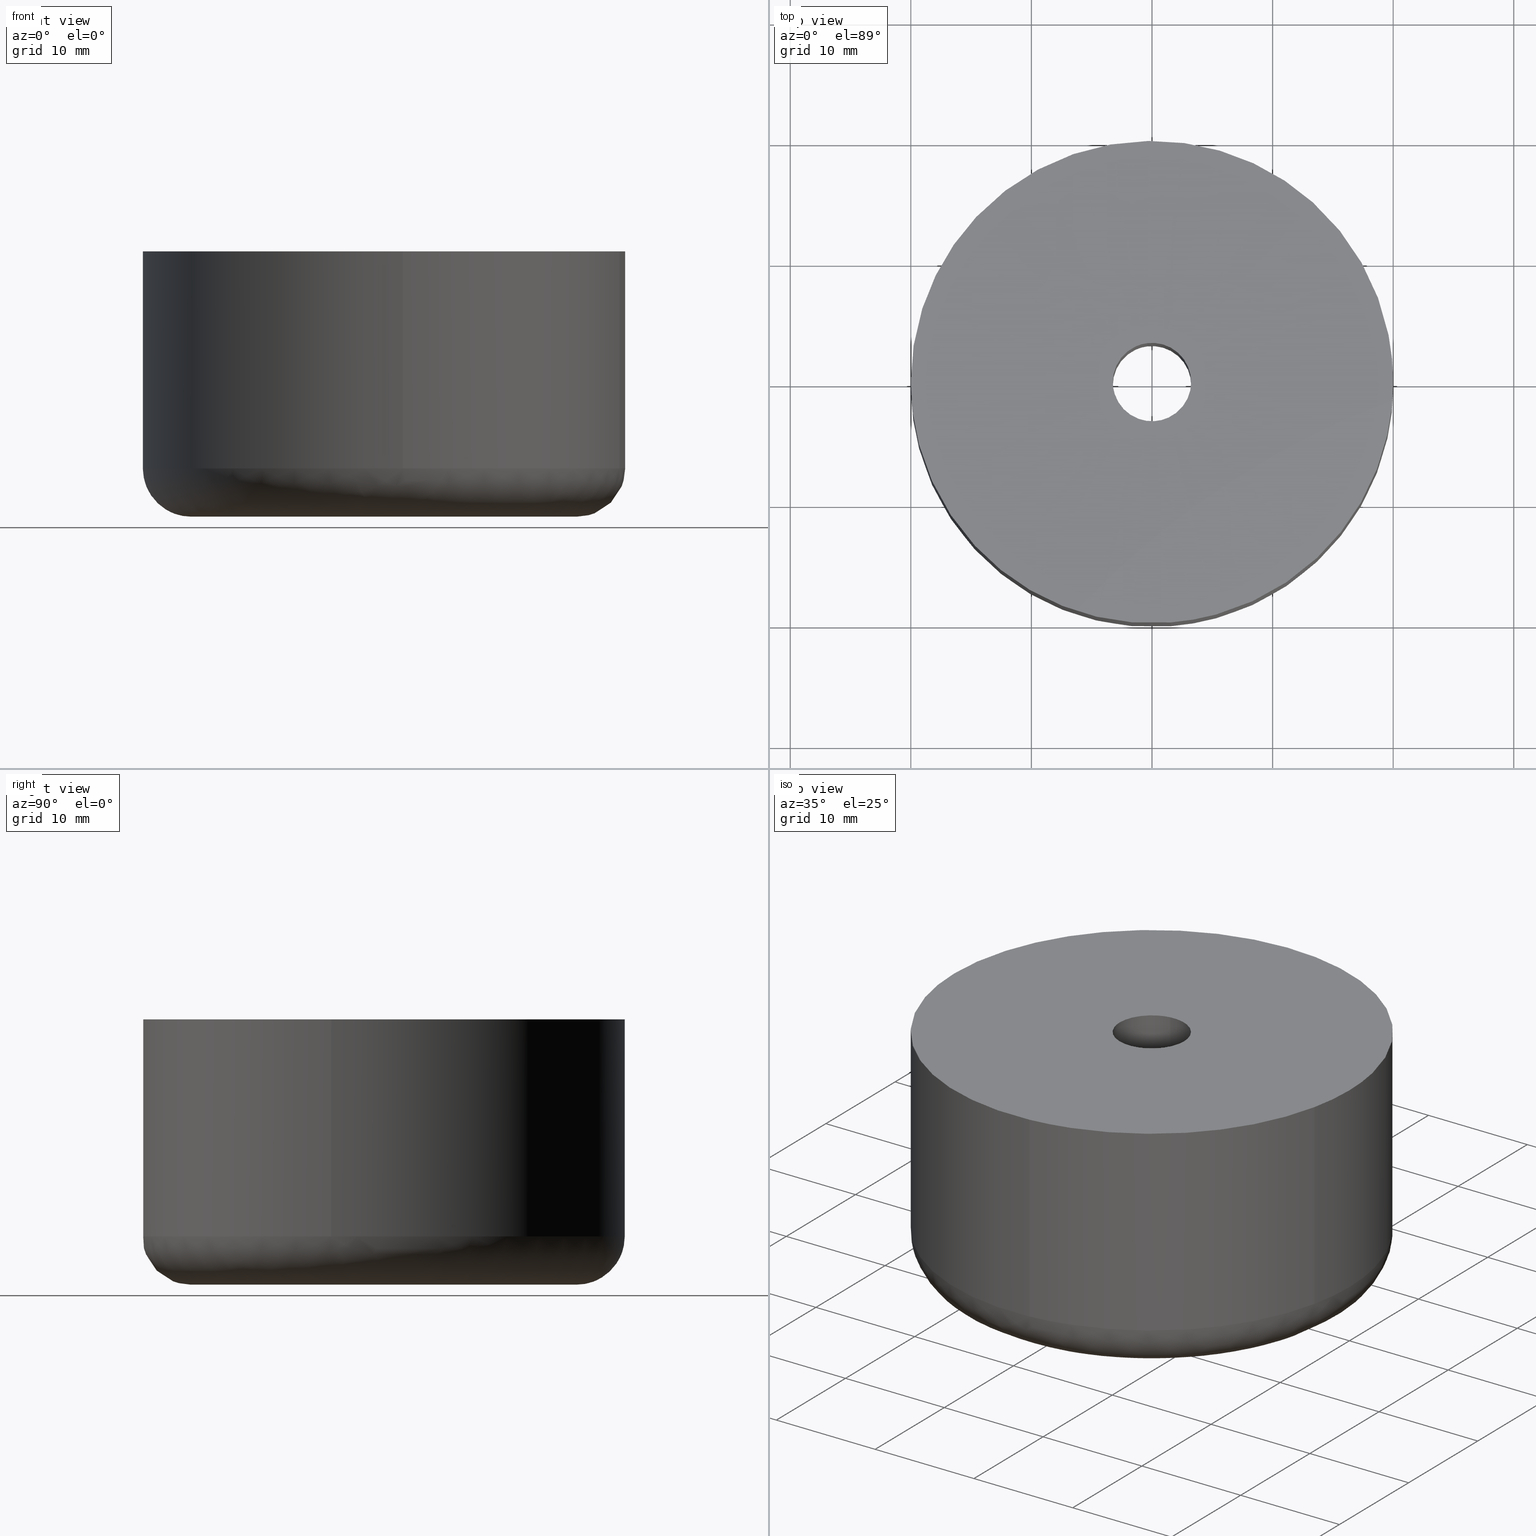
[diagram: canonical four-view strip — front | top / right | iso, engineering-drawing reading convention]
A machine part, canonical four-view strip (front | top / right | iso — engineering-drawing reading convention). The complete STEP part file that produces these views, byte-faithful:
ISO-10303-21;
HEADER;
/****************************************************************
 * Generated by software with PDE/Lib inside                    *
 * PDElib Version 4.4.1-0003, patched  Thursday August 19 11:58 *
 * International Technegroup Inc. (www.iti-oh.com)              *
 ****************************************************************/
FILE_DESCRIPTION((''),'2;1');
FILE_NAME('','2005-12-14T14:07:30',(''),(''),'','CADfix','');
FILE_SCHEMA(('AUTOMOTIVE_DESIGN'));
ENDSEC;
DATA;
#5=APPLICATION_CONTEXT('automotive design');
#6=APPLICATION_PROTOCOL_DEFINITION('Draft International Standard','automotive_design',1998,#5);
#7=PRODUCT_CONTEXT('None',#5,'mechanical');
#8=PRODUCT('rubber foot','','None',(#7));
#9=PRODUCT_RELATED_PRODUCT_CATEGORY('part','description',(#8));
#10=PRODUCT_DEFINITION_FORMATION('None','None',#8);
#11=PRODUCT_DEFINITION_CONTEXT('part definition',#5,'design');
#12=PRODUCT_DEFINITION('None','None',#10,#11);
#18=(NAMED_UNIT(*)PLANE_ANGLE_UNIT()SI_UNIT($,.RADIAN.));
#19=DIMENSIONAL_EXPONENTS(0.0,0.0,0.0,0.0,0.0,0.0,0.0);
#20=PLANE_ANGLE_MEASURE_WITH_UNIT(PLANE_ANGLE_MEASURE(0.017453292500000),#18);
#24=(CONVERSION_BASED_UNIT('DEGREE',#20)NAMED_UNIT(#19)PLANE_ANGLE_UNIT());
#28=(NAMED_UNIT(*)SI_UNIT($,.STERADIAN.)SOLID_ANGLE_UNIT());
#32=(LENGTH_UNIT()NAMED_UNIT(*)SI_UNIT(.MILLI.,.METRE.));
#34=UNCERTAINTY_MEASURE_WITH_UNIT(LENGTH_MEASURE(0.001000000000000),#32,'DISTANCE_ACCURACY_VALUE','');
#36=(GEOMETRIC_REPRESENTATION_CONTEXT(3)GLOBAL_UNCERTAINTY_ASSIGNED_CONTEXT((#34))GLOBAL_UNIT_ASSIGNED_CONTEXT((#24,#28,#32))REPRESENTATION_CONTEXT('None','None'));
#37=AXIS2_PLACEMENT_3D('',#38,#39,#40);
#38=CARTESIAN_POINT('',(0.0,0.0,0.0));
#39=DIRECTION('',(0.0,0.0,1.0));
#40=DIRECTION('',(1.0,0.0,0.0));
#41=ADVANCED_BREP_SHAPE_REPRESENTATION('',(#37,#845),#36);
#42=PRODUCT_DEFINITION_SHAPE('','',#12);
#43=SHAPE_DEFINITION_REPRESENTATION(#42,#41);
#44=CARTESIAN_POINT('',(19.546541232075629,-4.236539307712274,22.450000000001875));
#45=CARTESIAN_POINT('',(19.532969720462436,-4.297322978909762,22.450000000001886));
#46=CARTESIAN_POINT('',(16.299555177427159,-18.779041156710942,22.450000000001882));
#47=CARTESIAN_POINT('',(1.512847942178782,-19.942780254440912,22.450000000001868));
#48=CARTESIAN_POINT('',(1.456645673493703,-19.947203468913852,22.450000000001889));
#49=CARTESIAN_POINT('',(19.546541232075629,-4.236539307712274,3.538749999923005));
#50=CARTESIAN_POINT('',(19.532969720462436,-4.297322978909762,3.538749999923005));
#51=CARTESIAN_POINT('',(16.299555177427159,-18.779041156710942,3.538749999923005));
#52=CARTESIAN_POINT('',(1.512847942178782,-19.942780254440912,3.538749999923004));
#53=CARTESIAN_POINT('',(1.456645673493703,-19.947203468913852,3.538749999923006));
#61=(BOUNDED_SURFACE()B_SPLINE_SURFACE(2,1,((#44,#49),(#45,#50),(#46,#51),(#47,#52),(#48,#53)),.UNSPECIFIED.,.F.,.F.,.U.)B_SPLINE_SURFACE_WITH_KNOTS((3,1,1,3),(2,2),(0.0,0.131658696680241,26.460633174413161,26.592291628132401),(0.0,18.911250000078880),.UNSPECIFIED.)GEOMETRIC_REPRESENTATION_ITEM()RATIONAL_B_SPLINE_SURFACE(((0.907680205065056,0.907680205065056),(0.906977187522375,0.906977187522375),(0.765685424949238,0.765685424949238),(1.001171693742237,1.001171693742237),(1.002343387484473,1.002343387484473)))REPRESENTATION_ITEM('')SURFACE());
#62=CARTESIAN_POINT('',(19.519379982625448,-4.358188281122331,4.000000000000071));
#63=VERTEX_POINT('',#62);
#64=CARTESIAN_POINT('',(1.569170392331412,-19.938347581474670,4.000000000000124));
#65=VERTEX_POINT('',#64);
#66=CARTESIAN_POINT('',(19.519379982625452,-4.358188281122331,4.000000000000071));
#67=CARTESIAN_POINT('',(16.299563234985335,-18.779049087876711,4.000000000000100));
#68=CARTESIAN_POINT('',(1.569170392331412,-19.938347581474670,4.000000000000124));
#76=(BOUNDED_CURVE()B_SPLINE_CURVE(2,(#66,#67,#68),.UNSPECIFIED.,.F.,.U.)B_SPLINE_CURVE_WITH_KNOTS((3,3),(0.537286560993393,0.736331399697739),.UNSPECIFIED.)CURVE()GEOMETRIC_REPRESENTATION_ITEM()RATIONAL_B_SPLINE_CURVE((0.925662739272852,0.762027681298202,0.969723562912946))REPRESENTATION_ITEM(''));
#77=EDGE_CURVE('',#63,#65,#76,.T.);
#78=ORIENTED_EDGE('',*,*,#77,.F.);
#79=CARTESIAN_POINT('',(19.519379947706881,-4.358188437515530,22.0));
#80=VERTEX_POINT('',#79);
#81=CARTESIAN_POINT('',(19.519379947706881,-4.358188437515530,22.0));
#82=CARTESIAN_POINT('',(19.519379982625448,-4.358188281122331,4.000000000000071));
#83=QUASI_UNIFORM_CURVE('',1,(#81,#82),.UNSPECIFIED.,.F.,.U.);
#84=EDGE_CURVE('',#80,#63,#83,.T.);
#85=ORIENTED_EDGE('',*,*,#84,.F.);
#86=CARTESIAN_POINT('',(1.569170534429815,-19.938347570291452,22.0));
#87=VERTEX_POINT('',#86);
#88=CARTESIAN_POINT('',(19.519379947706874,-4.358188437515530,22.0));
#89=CARTESIAN_POINT('',(16.299563135519694,-18.779048990072631,22.000000000000007));
#90=CARTESIAN_POINT('',(1.569170534429815,-19.938347570291448,22.000000000000004));
#98=(BOUNDED_CURVE()B_SPLINE_CURVE(2,(#88,#89,#90),.UNSPECIFIED.,.F.,.U.)B_SPLINE_CURVE_WITH_KNOTS((3,3),(0.537286562304474,0.736331398476015),.UNSPECIFIED.)CURVE()GEOMETRIC_REPRESENTATION_ITEM()RATIONAL_B_SPLINE_CURVE((0.925662737117169,0.762027683670648,0.969723560363300))REPRESENTATION_ITEM(''));
#99=EDGE_CURVE('',#80,#87,#98,.T.);
#100=ORIENTED_EDGE('',*,*,#99,.T.);
#101=CARTESIAN_POINT('',(1.569170534429815,-19.938347570291452,22.0));
#102=CARTESIAN_POINT('',(1.569170392331412,-19.938347581474670,4.000000000000124));
#103=QUASI_UNIFORM_CURVE('',1,(#101,#102),.UNSPECIFIED.,.F.,.U.);
#104=EDGE_CURVE('',#87,#65,#103,.T.);
#105=ORIENTED_EDGE('',*,*,#104,.T.);
#106=EDGE_LOOP('',(#78,#85,#100,#105));
#107=FACE_OUTER_BOUND('',#106,.T.);
#108=ADVANCED_FACE('',(#107),#61,.T.);
#109=CARTESIAN_POINT('',(1.569181914556897,-19.938346674662551,22.450000000001879));
#110=CARTESIAN_POINT('',(-18.369164760105654,-21.507528589219444,22.450000000001875));
#111=CARTESIAN_POINT('',(-19.938346674662551,-1.569181914556897,22.450000000001879));
#112=CARTESIAN_POINT('',(-21.507528589219444,18.369164760105654,22.450000000001875));
#113=CARTESIAN_POINT('',(-1.569181914556897,19.938346674662551,22.450000000001879));
#114=CARTESIAN_POINT('',(18.369164760105654,21.507528589219444,22.450000000001875));
#115=CARTESIAN_POINT('',(19.938346674662551,1.569181914556897,22.450000000001879));
#116=CARTESIAN_POINT('',(20.174070915534511,-1.425978551241638,22.450000000001879));
#117=CARTESIAN_POINT('',(19.519377153387083,-4.358200952667287,22.450000000001882));
#118=CARTESIAN_POINT('',(1.569181914556897,-19.938346674662551,3.538749999923006));
#119=CARTESIAN_POINT('',(-18.369164760105654,-21.507528589219444,3.538749999923006));
#120=CARTESIAN_POINT('',(-19.938346674662551,-1.569181914556897,3.538749999923006));
#121=CARTESIAN_POINT('',(-21.507528589219444,18.369164760105654,3.538749999923006));
#122=CARTESIAN_POINT('',(-1.569181914556897,19.938346674662551,3.538749999923006));
#123=CARTESIAN_POINT('',(18.369164760105654,21.507528589219444,3.538749999923006));
#124=CARTESIAN_POINT('',(19.938346674662551,1.569181914556897,3.538749999923006));
#125=CARTESIAN_POINT('',(20.174070915534511,-1.425978551241638,3.538749999923005));
#126=CARTESIAN_POINT('',(19.519377153387083,-4.358200952667287,3.538749999923005));
#134=(BOUNDED_SURFACE()B_SPLINE_SURFACE(2,1,((#109,#118),(#110,#119),(#111,#120),(#112,#121),(#113,#122),(#114,#123),(#115,#124),(#116,#125),(#117,#126)),.UNSPECIFIED.,.F.,.F.,.U.)B_SPLINE_SURFACE_WITH_KNOTS((3,2,2,2,3),(2,2),(0.0,33.137084989847587,66.274169979695188,99.411254969542782,106.038671967512300),(0.0,18.911250000078880),.UNSPECIFIED.)GEOMETRIC_REPRESENTATION_ITEM()RATIONAL_B_SPLINE_SURFACE(((1.0,1.0),(0.707106781186548,0.707106781186548),(1.0,1.0),(0.707106781186548,0.707106781186548),(1.0,1.0),(0.707106781186548,0.707106781186548),(1.0,1.0),(0.941421356237310,0.941421356237310),(0.906274169979695,0.906274169979695)))REPRESENTATION_ITEM('')SURFACE());
#135=CARTESIAN_POINT('',(20.0,0.0,4.000000000000100));
#136=VERTEX_POINT('',#135);
#137=CARTESIAN_POINT('',(20.0,0.0,4.000000000000100));
#138=CARTESIAN_POINT('',(20.000000000000004,-2.205595473936513,4.000000000000100));
#139=CARTESIAN_POINT('',(19.519379982625452,-4.358188281122331,4.000000000000071));
#147=(BOUNDED_CURVE()B_SPLINE_CURVE(2,(#137,#138,#139),.UNSPECIFIED.,.F.,.U.)B_SPLINE_CURVE_WITH_KNOTS((3,3),(0.500000000000000,0.537286560993393),.UNSPECIFIED.)CURVE()GEOMETRIC_REPRESENTATION_ITEM()RATIONAL_B_SPLINE_CURVE((1.0,0.956316076528644,0.925662739272852))REPRESENTATION_ITEM(''));
#148=EDGE_CURVE('',#136,#63,#147,.T.);
#149=ORIENTED_EDGE('',*,*,#148,.F.);
#150=CARTESIAN_POINT('',(-0.502601908870846,19.993683785665890,3.999999999924962));
#151=VERTEX_POINT('',#150);
#152=CARTESIAN_POINT('',(-0.502601908870846,19.993683785665894,3.999999999924961));
#153=CARTESIAN_POINT('',(-0.251340642471690,20.000000000000004,4.000000000000100));
#154=CARTESIAN_POINT('',(0.0,20.0,4.000000000000100));
#155=CARTESIAN_POINT('',(19.999999999999996,19.999999999999996,4.000000000000100));
#156=CARTESIAN_POINT('',(20.0,0.0,4.000000000000100));
#164=(BOUNDED_CURVE()B_SPLINE_CURVE(2,(#152,#153,#154,#155,#156),.UNSPECIFIED.,.F.,.U.)B_SPLINE_CURVE_WITH_KNOTS((3,2,3),(0.245579891769736,0.250000000000000,0.500000000000000),.UNSPECIFIED.)CURVE()GEOMETRIC_REPRESENTATION_ITEM()RATIONAL_B_SPLINE_CURVE((0.989826157681414,0.994821521091736,1.0,0.707106781186548,1.0))REPRESENTATION_ITEM(''));
#165=EDGE_CURVE('',#151,#136,#164,.T.);
#166=ORIENTED_EDGE('',*,*,#165,.F.);
#167=CARTESIAN_POINT('',(-20.0,0.0,4.000000000000100));
#168=VERTEX_POINT('',#167);
#169=CARTESIAN_POINT('',(-20.0,0.0,4.000000000000100));
#170=CARTESIAN_POINT('',(-19.999999999999996,19.503557523605004,4.000000000000100));
#171=CARTESIAN_POINT('',(-0.502601908870846,19.993683785665901,3.999999999924962));
#179=(BOUNDED_CURVE()B_SPLINE_CURVE(2,(#169,#170,#171),.UNSPECIFIED.,.F.,.U.)B_SPLINE_CURVE_WITH_KNOTS((3,3),(0.0,0.245579891769736),.UNSPECIFIED.)CURVE()GEOMETRIC_REPRESENTATION_ITEM()RATIONAL_B_SPLINE_CURVE((1.0,0.712285260094811,0.989826157681414))REPRESENTATION_ITEM(''));
#180=EDGE_CURVE('',#168,#151,#179,.T.);
#181=ORIENTED_EDGE('',*,*,#180,.F.);
#182=CARTESIAN_POINT('',(-19.993683785665880,-0.502601908871384,3.999999999924933));
#183=VERTEX_POINT('',#182);
#184=CARTESIAN_POINT('',(-19.993683785665880,-0.502601908871384,3.999999999924933));
#185=CARTESIAN_POINT('',(-20.000000000000004,-0.251340642472230,4.000000000000100));
#186=CARTESIAN_POINT('',(-20.0,0.0,4.000000000000100));
#194=(BOUNDED_CURVE()B_SPLINE_CURVE(2,(#184,#185,#186),.UNSPECIFIED.,.F.,.U.)B_SPLINE_CURVE_WITH_KNOTS((3,3),(0.995579891769726,1.0),.UNSPECIFIED.)CURVE()GEOMETRIC_REPRESENTATION_ITEM()RATIONAL_B_SPLINE_CURVE((0.989826157681393,0.994821521091725,1.0))REPRESENTATION_ITEM(''));
#195=EDGE_CURVE('',#183,#168,#194,.T.);
#196=ORIENTED_EDGE('',*,*,#195,.F.);
#197=CARTESIAN_POINT('',(1.569170392331412,-19.938347581474670,4.000000000000124));
#198=CARTESIAN_POINT('',(0.785796352305469,-19.999999999999996,4.000000000000099));
#199=CARTESIAN_POINT('',(0.0,-20.0,4.000000000000100));
#200=CARTESIAN_POINT('',(-19.503557523603920,-20.000000000000004,4.000000000000100));
#201=CARTESIAN_POINT('',(-19.993683785665883,-0.502601908871384,3.999999999924933));
#209=(BOUNDED_CURVE()B_SPLINE_CURVE(2,(#197,#198,#199,#200,#201),.UNSPECIFIED.,.F.,.U.)B_SPLINE_CURVE_WITH_KNOTS((3,2,3),(0.736331399697739,0.750000000000000,0.995579891769726),.UNSPECIFIED.)CURVE()GEOMETRIC_REPRESENTATION_ITEM()RATIONAL_B_SPLINE_CURVE((0.969723562912946,0.983986238643185,1.0,0.712285260094822,0.989826157681392))REPRESENTATION_ITEM(''));
#210=EDGE_CURVE('',#65,#183,#209,.T.);
#211=ORIENTED_EDGE('',*,*,#210,.F.);
#212=ORIENTED_EDGE('',*,*,#104,.F.);
#213=CARTESIAN_POINT('',(-20.0,0.0,22.0));
#214=VERTEX_POINT('',#213);
#215=CARTESIAN_POINT('',(1.569170534429815,-19.938347570291448,22.000000000000004));
#216=CARTESIAN_POINT('',(0.785796423684385,-20.000000000000004,22.000000000000004));
#217=CARTESIAN_POINT('',(0.0,-20.0,22.0));
#218=CARTESIAN_POINT('',(-19.999999999999996,-19.999999999999996,22.000000000000007));
#219=CARTESIAN_POINT('',(-20.0,0.0,22.0));
#227=(BOUNDED_CURVE()B_SPLINE_CURVE(2,(#215,#216,#217,#218,#219),.UNSPECIFIED.,.F.,.U.)B_SPLINE_CURVE_WITH_KNOTS((3,2,3),(0.736331398476015,0.750000000000000,1.0),.UNSPECIFIED.)CURVE()GEOMETRIC_REPRESENTATION_ITEM()RATIONAL_B_SPLINE_CURVE((0.969723560363300,0.983986237211846,1.0,0.707106781186548,1.0))REPRESENTATION_ITEM(''));
#228=EDGE_CURVE('',#87,#214,#227,.T.);
#229=ORIENTED_EDGE('',*,*,#228,.T.);
#230=CARTESIAN_POINT('',(20.0,0.0,22.0));
#231=VERTEX_POINT('',#230);
#232=CARTESIAN_POINT('',(-20.0,0.0,22.0));
#233=CARTESIAN_POINT('',(-19.999999999999996,19.999999999999996,22.000000000000007));
#234=CARTESIAN_POINT('',(0.0,20.0,22.0));
#235=CARTESIAN_POINT('',(19.999999999999996,19.999999999999996,22.000000000000007));
#236=CARTESIAN_POINT('',(20.0,0.0,22.0));
#244=(BOUNDED_CURVE()B_SPLINE_CURVE(2,(#232,#233,#234,#235,#236),.UNSPECIFIED.,.F.,.U.)B_SPLINE_CURVE_WITH_KNOTS((3,2,3),(0.0,0.250000000000000,0.500000000000000),.UNSPECIFIED.)CURVE()GEOMETRIC_REPRESENTATION_ITEM()RATIONAL_B_SPLINE_CURVE((1.0,0.707106781186548,1.0,0.707106781186548,1.0))REPRESENTATION_ITEM(''));
#245=EDGE_CURVE('',#214,#231,#244,.T.);
#246=ORIENTED_EDGE('',*,*,#245,.T.);
#247=CARTESIAN_POINT('',(20.0,0.0,22.0));
#248=CARTESIAN_POINT('',(20.000000000000004,-2.205595555032925,22.0));
#249=CARTESIAN_POINT('',(19.519379947706877,-4.358188437515530,21.999999999999996));
#257=(BOUNDED_CURVE()B_SPLINE_CURVE(2,(#247,#248,#249),.UNSPECIFIED.,.F.,.U.)B_SPLINE_CURVE_WITH_KNOTS((3,3),(0.500000000000000,0.537286562304474),.UNSPECIFIED.)CURVE()GEOMETRIC_REPRESENTATION_ITEM()RATIONAL_B_SPLINE_CURVE((1.0,0.956316074992617,0.925662737117168))REPRESENTATION_ITEM(''));
#258=EDGE_CURVE('',#231,#80,#257,.T.);
#259=ORIENTED_EDGE('',*,*,#258,.T.);
#260=ORIENTED_EDGE('',*,*,#84,.T.);
#261=EDGE_LOOP('',(#149,#166,#181,#196,#211,#212,#229,#246,#259,#260));
#262=FACE_OUTER_BOUND('',#261,.T.);
#263=ADVANCED_FACE('',(#262),#134,.T.);
#264=CARTESIAN_POINT('',(-0.383611262634465,3.227280960681916,22.387500000000003));
#265=CARTESIAN_POINT('',(-0.291247868073427,3.238259750207968,22.387500000000006));
#266=CARTESIAN_POINT('',(-0.198407753488285,3.243938094871067,22.387499999999999));
#267=CARTESIAN_POINT('',(3.045530341382781,3.442345848359353,22.387500000000010));
#268=CARTESIAN_POINT('',(3.243938094871067,0.198407753488285,22.387499999999999));
#269=CARTESIAN_POINT('',(3.442345848359353,-3.045530341382781,22.387500000000010));
#270=CARTESIAN_POINT('',(0.198407753488285,-3.243938094871067,22.387499999999999));
#271=CARTESIAN_POINT('',(-0.383611262634465,3.227280960681916,6.102812500000103));
#272=CARTESIAN_POINT('',(-0.291247868073427,3.238259750207968,6.102812500000102));
#273=CARTESIAN_POINT('',(-0.198407753488285,3.243938094871067,6.102812500000102));
#274=CARTESIAN_POINT('',(3.045530341382781,3.442345848359353,6.102812500000101));
#275=CARTESIAN_POINT('',(3.243938094871067,0.198407753488285,6.102812500000102));
#276=CARTESIAN_POINT('',(3.442345848359353,-3.045530341382781,6.102812500000101));
#277=CARTESIAN_POINT('',(0.198407753488285,-3.243938094871067,6.102812500000102));
#285=(BOUNDED_SURFACE()B_SPLINE_SURFACE(2,1,((#264,#271),(#265,#272),(#266,#273),(#267,#274),(#268,#275),(#269,#276),(#270,#277)),.UNSPECIFIED.,.F.,.F.,.U.)B_SPLINE_SURFACE_WITH_KNOTS((3,2,2,3),(2,2),(0.0,0.215391052434010,5.600167363284244,10.984943674134479),(0.0,16.284687499999912),.UNSPECIFIED.)GEOMETRIC_REPRESENTATION_ITEM()RATIONAL_B_SPLINE_SURFACE(((0.977505800795127,0.977505800795127),(0.988284271247462,0.988284271247462),(1.0,1.0),(0.707106781186548,0.707106781186548),(1.0,1.0),(0.707106781186548,0.707106781186548),(1.0,1.0)))REPRESENTATION_ITEM('')SURFACE());
#286=CARTESIAN_POINT('',(-0.383611262676458,3.227280960676924,22.0));
#287=VERTEX_POINT('',#286);
#288=CARTESIAN_POINT('',(3.250000000000000,0.0,22.0));
#289=VERTEX_POINT('',#288);
#290=CARTESIAN_POINT('',(-0.383611262676458,3.227280960676925,22.000000000000004));
#291=CARTESIAN_POINT('',(-0.192478388911145,3.250000000000000,22.000000000000004));
#292=CARTESIAN_POINT('',(0.0,3.250000000000000,22.0));
#293=CARTESIAN_POINT('',(3.250000000000000,3.250000000000000,21.999999999999993));
#294=CARTESIAN_POINT('',(3.250000000000000,0.0,22.0));
#302=(BOUNDED_CURVE()B_SPLINE_CURVE(2,(#290,#291,#292,#293,#294),.UNSPECIFIED.,.F.,.U.)B_SPLINE_CURVE_WITH_KNOTS((3,2,3),(0.229562473511246,0.250000000000000,0.500000000000000),.UNSPECIFIED.)CURVE()GEOMETRIC_REPRESENTATION_ITEM()RATIONAL_B_SPLINE_CURVE((0.956026754179265,0.976055948328495,1.0,0.707106781186547,1.0))REPRESENTATION_ITEM(''));
#303=EDGE_CURVE('',#287,#289,#302,.T.);
#304=ORIENTED_EDGE('',*,*,#303,.F.);
#305=CARTESIAN_POINT('',(-0.383611262676458,3.227280960676924,6.500000000000100));
#306=VERTEX_POINT('',#305);
#307=CARTESIAN_POINT('',(-0.383611262676458,3.227280960676924,22.0));
#308=CARTESIAN_POINT('',(-0.383611262676458,3.227280960676924,6.500000000000100));
#309=QUASI_UNIFORM_CURVE('',1,(#307,#308),.UNSPECIFIED.,.F.,.U.);
#310=EDGE_CURVE('',#287,#306,#309,.T.);
#311=ORIENTED_EDGE('',*,*,#310,.T.);
#312=CARTESIAN_POINT('',(3.250000000000000,0.0,6.500000000000100));
#313=VERTEX_POINT('',#312);
#314=CARTESIAN_POINT('',(-0.383611262676458,3.227280960676925,6.500000000000100));
#315=CARTESIAN_POINT('',(-0.192478388911145,3.250000000000000,6.500000000000100));
#316=CARTESIAN_POINT('',(0.0,3.250000000000000,6.500000000000100));
#317=CARTESIAN_POINT('',(3.250000000000000,3.250000000000000,6.500000000000099));
#318=CARTESIAN_POINT('',(3.250000000000000,0.0,6.500000000000100));
#326=(BOUNDED_CURVE()B_SPLINE_CURVE(2,(#314,#315,#316,#317,#318),.UNSPECIFIED.,.F.,.U.)B_SPLINE_CURVE_WITH_KNOTS((3,2,3),(0.229562473511246,0.250000000000000,0.500000000000000),.UNSPECIFIED.)CURVE()GEOMETRIC_REPRESENTATION_ITEM()RATIONAL_B_SPLINE_CURVE((0.956026754179265,0.976055948328495,1.0,0.707106781186547,1.0))REPRESENTATION_ITEM(''));
#327=EDGE_CURVE('',#306,#313,#326,.T.);
#328=ORIENTED_EDGE('',*,*,#327,.T.);
#329=CARTESIAN_POINT('',(0.198407753558545,-3.243938094866770,6.500000000000100));
#330=VERTEX_POINT('',#329);
#331=CARTESIAN_POINT('',(3.250000000000000,0.0,6.500000000000100));
#332=CARTESIAN_POINT('',(3.250000000000000,-3.057294717310810,6.500000000000099));
#333=CARTESIAN_POINT('',(0.198407753558545,-3.243938094866770,6.500000000000100));
#341=(BOUNDED_CURVE()B_SPLINE_CURVE(2,(#331,#332,#333),.UNSPECIFIED.,.F.,.U.)B_SPLINE_CURVE_WITH_KNOTS((3,3),(0.500000000000000,0.739332962234493),.UNSPECIFIED.)CURVE()GEOMETRIC_REPRESENTATION_ITEM()RATIONAL_B_SPLINE_CURVE((1.0,0.719603993291923,0.976072041657181))REPRESENTATION_ITEM(''));
#342=EDGE_CURVE('',#313,#330,#341,.T.);
#343=ORIENTED_EDGE('',*,*,#342,.T.);
#344=CARTESIAN_POINT('',(0.198407753558544,-3.243938094866770,22.0));
#345=VERTEX_POINT('',#344);
#346=CARTESIAN_POINT('',(0.198407753558544,-3.243938094866770,22.0));
#347=CARTESIAN_POINT('',(0.198407753558545,-3.243938094866770,6.500000000000100));
#348=QUASI_UNIFORM_CURVE('',1,(#346,#347),.UNSPECIFIED.,.F.,.U.);
#349=EDGE_CURVE('',#345,#330,#348,.T.);
#350=ORIENTED_EDGE('',*,*,#349,.F.);
#351=CARTESIAN_POINT('',(3.250000000000000,0.0,22.0));
#352=CARTESIAN_POINT('',(3.250000000000000,-3.057294717310810,21.999999999999993));
#353=CARTESIAN_POINT('',(0.198407753558544,-3.243938094866770,22.0));
#361=(BOUNDED_CURVE()B_SPLINE_CURVE(2,(#351,#352,#353),.UNSPECIFIED.,.F.,.U.)B_SPLINE_CURVE_WITH_KNOTS((3,3),(0.500000000000000,0.739332962234493),.UNSPECIFIED.)CURVE()GEOMETRIC_REPRESENTATION_ITEM()RATIONAL_B_SPLINE_CURVE((1.0,0.719603993291923,0.976072041657181))REPRESENTATION_ITEM(''));
#362=EDGE_CURVE('',#289,#345,#361,.T.);
#363=ORIENTED_EDGE('',*,*,#362,.F.);
#364=EDGE_LOOP('',(#304,#311,#328,#343,#350,#363));
#365=FACE_OUTER_BOUND('',#364,.T.);
#366=ADVANCED_FACE('',(#365),#285,.F.);
#367=CARTESIAN_POINT('',(0.198407753488285,-3.243938094871067,22.387499999999999));
#368=CARTESIAN_POINT('',(-3.045530341382781,-3.442345848359353,22.387500000000010));
#369=CARTESIAN_POINT('',(-3.243938094871067,-0.198407753488285,22.387499999999999));
#370=CARTESIAN_POINT('',(-3.431305139380714,2.865016345228379,22.387500000000010));
#371=CARTESIAN_POINT('',(-0.383611262634465,3.227280960681916,22.387500000000003));
#372=CARTESIAN_POINT('',(0.198407753488285,-3.243938094871067,6.102812500000102));
#373=CARTESIAN_POINT('',(-3.045530341382781,-3.442345848359353,6.102812500000101));
#374=CARTESIAN_POINT('',(-3.243938094871067,-0.198407753488285,6.102812500000102));
#375=CARTESIAN_POINT('',(-3.431305139380714,2.865016345228379,6.102812500000102));
#376=CARTESIAN_POINT('',(-0.383611262634465,3.227280960681916,6.102812500000103));
#384=(BOUNDED_SURFACE()B_SPLINE_SURFACE(2,1,((#367,#372),(#368,#373),(#369,#374),(#370,#375),(#371,#376)),.UNSPECIFIED.,.F.,.F.,.U.)B_SPLINE_SURFACE_WITH_KNOTS((3,2,3),(2,2),(0.0,5.384776310850235,10.554161569266460),(0.0,16.284687499999912),.UNSPECIFIED.)GEOMETRIC_REPRESENTATION_ITEM()RATIONAL_B_SPLINE_SURFACE(((1.0,1.0),(0.707106781186548,0.707106781186548),(1.0,1.0),(0.718822509939086,0.718822509939086),(0.977505800795127,0.977505800795127)))REPRESENTATION_ITEM('')SURFACE());
#385=CARTESIAN_POINT('',(-3.250000000000000,0.0,22.0));
#386=VERTEX_POINT('',#385);
#387=CARTESIAN_POINT('',(-3.250000000000000,0.0,22.0));
#388=CARTESIAN_POINT('',(-3.250000000000001,2.886567209266297,21.999999999999996));
#389=CARTESIAN_POINT('',(-0.383611262676458,3.227280960676925,22.000000000000004));
#397=(BOUNDED_CURVE()B_SPLINE_CURVE(2,(#387,#388,#389),.UNSPECIFIED.,.F.,.U.)B_SPLINE_CURVE_WITH_KNOTS((3,3),(0.0,0.229562473511246),.UNSPECIFIED.)CURVE()GEOMETRIC_REPRESENTATION_ITEM()RATIONAL_B_SPLINE_CURVE((1.0,0.731050832858053,0.956026754179265))REPRESENTATION_ITEM(''));
#398=EDGE_CURVE('',#386,#287,#397,.T.);
#399=ORIENTED_EDGE('',*,*,#398,.F.);
#400=CARTESIAN_POINT('',(0.198407753558544,-3.243938094866769,22.000000000000004));
#401=CARTESIAN_POINT('',(0.099296480790870,-3.250000000000000,22.000000000000007));
#402=CARTESIAN_POINT('',(0.0,-3.250000000000000,22.0));
#403=CARTESIAN_POINT('',(-3.250000000000000,-3.250000000000000,21.999999999999993));
#404=CARTESIAN_POINT('',(-3.250000000000000,0.0,22.0));
#412=(BOUNDED_CURVE()B_SPLINE_CURVE(2,(#400,#401,#402,#403,#404),.UNSPECIFIED.,.F.,.U.)B_SPLINE_CURVE_WITH_KNOTS((3,2,3),(0.739332962234494,0.750000000000000,1.0),.UNSPECIFIED.)CURVE()GEOMETRIC_REPRESENTATION_ITEM()RATIONAL_B_SPLINE_CURVE((0.976072041657183,0.987502787894625,1.0,0.707106781186547,1.0))REPRESENTATION_ITEM(''));
#413=EDGE_CURVE('',#345,#386,#412,.T.);
#414=ORIENTED_EDGE('',*,*,#413,.F.);
#415=ORIENTED_EDGE('',*,*,#349,.T.);
#416=CARTESIAN_POINT('',(-3.250000000000000,0.0,6.500000000000100));
#417=VERTEX_POINT('',#416);
#418=CARTESIAN_POINT('',(0.198407753558545,-3.243938094866770,6.500000000000100));
#419=CARTESIAN_POINT('',(0.099296480790871,-3.250000000000000,6.500000000000100));
#420=CARTESIAN_POINT('',(0.0,-3.250000000000000,6.500000000000100));
#421=CARTESIAN_POINT('',(-3.250000000000000,-3.250000000000000,6.500000000000099));
#422=CARTESIAN_POINT('',(-3.250000000000000,0.0,6.500000000000100));
#430=(BOUNDED_CURVE()B_SPLINE_CURVE(2,(#418,#419,#420,#421,#422),.UNSPECIFIED.,.F.,.U.)B_SPLINE_CURVE_WITH_KNOTS((3,2,3),(0.739332962234494,0.750000000000000,1.0),.UNSPECIFIED.)CURVE()GEOMETRIC_REPRESENTATION_ITEM()RATIONAL_B_SPLINE_CURVE((0.976072041657183,0.987502787894625,1.0,0.707106781186547,1.0))REPRESENTATION_ITEM(''));
#431=EDGE_CURVE('',#330,#417,#430,.T.);
#432=ORIENTED_EDGE('',*,*,#431,.T.);
#433=CARTESIAN_POINT('',(-3.250000000000000,0.0,6.500000000000100));
#434=CARTESIAN_POINT('',(-3.250000000000001,2.886567209266298,6.500000000000098));
#435=CARTESIAN_POINT('',(-0.383611262676458,3.227280960676925,6.500000000000100));
#443=(BOUNDED_CURVE()B_SPLINE_CURVE(2,(#433,#434,#435),.UNSPECIFIED.,.F.,.U.)B_SPLINE_CURVE_WITH_KNOTS((3,3),(0.0,0.229562473511246),.UNSPECIFIED.)CURVE()GEOMETRIC_REPRESENTATION_ITEM()RATIONAL_B_SPLINE_CURVE((1.0,0.731050832858053,0.956026754179265))REPRESENTATION_ITEM(''));
#444=EDGE_CURVE('',#417,#306,#443,.T.);
#445=ORIENTED_EDGE('',*,*,#444,.T.);
#446=ORIENTED_EDGE('',*,*,#310,.F.);
#447=EDGE_LOOP('',(#399,#414,#415,#432,#445,#446));
#448=FACE_OUTER_BOUND('',#447,.T.);
#449=ADVANCED_FACE('',(#448),#384,.F.);
#450=CARTESIAN_POINT('',(-0.826239642597309,6.951066684545665,6.662500000000104));
#451=CARTESIAN_POINT('',(-0.627303100465844,6.974713308140240,6.662500000000103));
#452=CARTESIAN_POINT('',(-0.427339776743999,6.986943588953067,6.662500000000103));
#453=CARTESIAN_POINT('',(6.559603812209068,7.414283365697066,6.662500000000103));
#454=CARTESIAN_POINT('',(6.986943588953067,0.427339776743999,6.662500000000103));
#455=CARTESIAN_POINT('',(7.414283365697066,-6.559603812209068,6.662500000000103));
#456=CARTESIAN_POINT('',(0.427339776743999,-6.986943588953067,6.662500000000103));
#457=CARTESIAN_POINT('',(-0.826239642597309,6.951066684545665,-0.166562500000003));
#458=CARTESIAN_POINT('',(-0.627303100465844,6.974713308140240,-0.166562500000003));
#459=CARTESIAN_POINT('',(-0.427339776743999,6.986943588953067,-0.166562500000003));
#460=CARTESIAN_POINT('',(6.559603812209068,7.414283365697066,-0.166562500000003));
#461=CARTESIAN_POINT('',(6.986943588953067,0.427339776743999,-0.166562500000003));
#462=CARTESIAN_POINT('',(7.414283365697066,-6.559603812209068,-0.166562500000003));
#463=CARTESIAN_POINT('',(0.427339776743999,-6.986943588953067,-0.166562500000003));
#471=(BOUNDED_SURFACE()B_SPLINE_SURFACE(2,1,((#450,#457),(#451,#458),(#452,#459),(#453,#460),(#454,#461),(#455,#462),(#456,#463)),.UNSPECIFIED.,.F.,.F.,.U.)B_SPLINE_SURFACE_WITH_KNOTS((3,2,2,3),(2,2),(0.0,0.463919189857867,12.061898936304530,23.659878682751181),(0.0,6.829062500000107),.UNSPECIFIED.)GEOMETRIC_REPRESENTATION_ITEM()RATIONAL_B_SPLINE_SURFACE(((0.977505800795127,0.977505800795127),(0.988284271247462,0.988284271247462),(1.0,1.0),(0.707106781186548,0.707106781186548),(1.0,1.0),(0.707106781186548,0.707106781186548),(1.0,1.0)))REPRESENTATION_ITEM('')SURFACE());
#472=CARTESIAN_POINT('',(-0.826227817998268,6.951068090058103,-1.085797E-013));
#473=VERTEX_POINT('',#472);
#474=CARTESIAN_POINT('',(7.0,0.0,0.0));
#475=VERTEX_POINT('',#474);
#476=CARTESIAN_POINT('',(-0.826227817998268,6.951068090058103,-1.085797E-013));
#477=CARTESIAN_POINT('',(-0.414562862761283,7.0,0.0));
#478=CARTESIAN_POINT('',(0.0,7.0,0.0));
#479=CARTESIAN_POINT('',(6.999999999999999,6.999999999999999,0.0));
#480=CARTESIAN_POINT('',(7.0,0.0,0.0));
#488=(BOUNDED_CURVE()B_SPLINE_CURVE(2,(#476,#477,#478,#479,#480),.UNSPECIFIED.,.F.,.U.)B_SPLINE_CURVE_WITH_KNOTS((3,2,3),(0.229562761010492,0.250000000000000,0.500000000000000),.UNSPECIFIED.)CURVE()GEOMETRIC_REPRESENTATION_ITEM()RATIONAL_B_SPLINE_CURVE((0.956027317690327,0.976056285154812,1.0,0.707106781186547,1.0))REPRESENTATION_ITEM(''));
#489=EDGE_CURVE('',#473,#475,#488,.T.);
#490=ORIENTED_EDGE('',*,*,#489,.T.);
#491=CARTESIAN_POINT('',(0.427339776773775,-6.986943588951247,2.220446E-016));
#492=VERTEX_POINT('',#491);
#493=CARTESIAN_POINT('',(7.0,0.0,0.0));
#494=CARTESIAN_POINT('',(7.0,-6.584942468283616,0.0));
#495=CARTESIAN_POINT('',(0.427339776773775,-6.986943588951247,2.220446E-016));
#503=(BOUNDED_CURVE()B_SPLINE_CURVE(2,(#493,#494,#495),.UNSPECIFIED.,.F.,.U.)B_SPLINE_CURVE_WITH_KNOTS((3,3),(0.500000000000000,0.739332962240497),.UNSPECIFIED.)CURVE()GEOMETRIC_REPRESENTATION_ITEM()RATIONAL_B_SPLINE_CURVE((1.0,0.719603993284889,0.976072041670049))REPRESENTATION_ITEM(''));
#504=EDGE_CURVE('',#475,#492,#503,.T.);
#505=ORIENTED_EDGE('',*,*,#504,.T.);
#506=CARTESIAN_POINT('',(0.427339776773775,-6.986943588951247,6.500000000000100));
#507=VERTEX_POINT('',#506);
#508=CARTESIAN_POINT('',(0.427339776773775,-6.986943588951247,6.500000000000100));
#509=CARTESIAN_POINT('',(0.427339776773775,-6.986943588951247,2.220446E-016));
#510=QUASI_UNIFORM_CURVE('',1,(#508,#509),.UNSPECIFIED.,.F.,.U.);
#511=EDGE_CURVE('',#507,#492,#510,.T.);
#512=ORIENTED_EDGE('',*,*,#511,.F.);
#513=CARTESIAN_POINT('',(7.0,0.0,6.500000000000100));
#514=VERTEX_POINT('',#513);
#515=CARTESIAN_POINT('',(7.0,0.0,6.500000000000100));
#516=CARTESIAN_POINT('',(7.0,-6.584942468283616,6.500000000000100));
#517=CARTESIAN_POINT('',(0.427339776773775,-6.986943588951247,6.500000000000100));
#525=(BOUNDED_CURVE()B_SPLINE_CURVE(2,(#515,#516,#517),.UNSPECIFIED.,.F.,.U.)B_SPLINE_CURVE_WITH_KNOTS((3,3),(0.500000000000000,0.739332962240497),.UNSPECIFIED.)CURVE()GEOMETRIC_REPRESENTATION_ITEM()RATIONAL_B_SPLINE_CURVE((1.0,0.719603993284889,0.976072041670049))REPRESENTATION_ITEM(''));
#526=EDGE_CURVE('',#514,#507,#525,.T.);
#527=ORIENTED_EDGE('',*,*,#526,.F.);
#528=CARTESIAN_POINT('',(-0.826227963984342,6.951068072705946,6.500000000000100));
#529=VERTEX_POINT('',#528);
#530=CARTESIAN_POINT('',(-0.826227963984342,6.951068072705946,6.500000000000100));
#531=CARTESIAN_POINT('',(-0.414562936525956,7.000000000000001,6.500000000000100));
#532=CARTESIAN_POINT('',(0.0,7.0,6.500000000000100));
#533=CARTESIAN_POINT('',(6.999999999999999,6.999999999999999,6.500000000000099));
#534=CARTESIAN_POINT('',(7.0,0.0,6.500000000000100));
#542=(BOUNDED_CURVE()B_SPLINE_CURVE(2,(#530,#531,#532,#533,#534),.UNSPECIFIED.,.F.,.U.)B_SPLINE_CURVE_WITH_KNOTS((3,2,3),(0.229562757461090,0.250000000000000,0.500000000000000),.UNSPECIFIED.)CURVE()GEOMETRIC_REPRESENTATION_ITEM()RATIONAL_B_SPLINE_CURVE((0.956027310733336,0.976056280996430,1.0,0.707106781186547,1.0))REPRESENTATION_ITEM(''));
#543=EDGE_CURVE('',#529,#514,#542,.T.);
#544=ORIENTED_EDGE('',*,*,#543,.F.);
#545=CARTESIAN_POINT('',(-0.826227963984342,6.951068072705946,6.500000000000100));
#546=CARTESIAN_POINT('',(-0.826227817998268,6.951068090058103,-1.085797E-013));
#547=QUASI_UNIFORM_CURVE('',1,(#545,#546),.UNSPECIFIED.,.F.,.U.);
#548=EDGE_CURVE('',#529,#473,#547,.T.);
#549=ORIENTED_EDGE('',*,*,#548,.T.);
#550=EDGE_LOOP('',(#490,#505,#512,#527,#544,#549));
#551=FACE_OUTER_BOUND('',#550,.T.);
#552=ADVANCED_FACE('',(#551),#471,.F.);
#553=CARTESIAN_POINT('',(0.523621206648025,-6.981054764428303,6.662500000000104));
#554=CARTESIAN_POINT('',(0.475618277154445,-6.983990749371025,6.662500000000100));
#555=CARTESIAN_POINT('',(-6.559603812209068,-7.414283365697066,6.662500000000103));
#556=CARTESIAN_POINT('',(-6.986943588953067,-0.427339776743999,6.662500000000103));
#557=CARTESIAN_POINT('',(-7.390503377127691,6.170804435876506,6.662500000000103));
#558=CARTESIAN_POINT('',(-0.777089617768156,6.956908910032981,6.662500000000104));
#559=CARTESIAN_POINT('',(-0.728203754435582,6.962719735922160,6.662500000000104));
#560=CARTESIAN_POINT('',(0.523621206648025,-6.981054764428303,-0.166562500000003));
#561=CARTESIAN_POINT('',(0.475618277154445,-6.983990749371025,-0.166562500000003));
#562=CARTESIAN_POINT('',(-6.559603812209068,-7.414283365697066,-0.166562500000003));
#563=CARTESIAN_POINT('',(-6.986943588953067,-0.427339776743999,-0.166562500000003));
#564=CARTESIAN_POINT('',(-7.390503377127691,6.170804435876506,-0.166562500000003));
#565=CARTESIAN_POINT('',(-0.777089617768156,6.956908910032981,-0.166562500000003));
#566=CARTESIAN_POINT('',(-0.728203754435582,6.962719735922160,-0.166562500000003));
#574=(BOUNDED_SURFACE()B_SPLINE_SURFACE(2,1,((#553,#560),(#554,#561),(#555,#562),(#556,#563),(#557,#564),(#558,#565),(#559,#566)),.UNSPECIFIED.,.F.,.F.,.U.)B_SPLINE_SURFACE_WITH_KNOTS((3,1,2,1,3),(2,2),(0.0,0.113660267195228,11.711640013641890,22.845700570230669,22.959374474477009),(0.0,6.829062500000107),.UNSPECIFIED.)GEOMETRIC_REPRESENTATION_ITEM()RATIONAL_B_SPLINE_SURFACE(((1.005740710406087,1.005740710406087),(1.002870355203044,1.002870355203044),(0.707106781186548,0.707106781186548),(1.0,1.0),(0.718822509939086,0.718822509939086),(0.980146844418470,0.980146844418470),(0.982787888041813,0.982787888041813)))REPRESENTATION_ITEM('')SURFACE());
#575=CARTESIAN_POINT('',(-7.0,0.0,0.0));
#576=VERTEX_POINT('',#575);
#577=CARTESIAN_POINT('',(-7.0,0.0,0.0));
#578=CARTESIAN_POINT('',(-6.999999999999999,6.217232332359439,0.0));
#579=CARTESIAN_POINT('',(-0.826227817998268,6.951068090058103,-1.085797E-013));
#587=(BOUNDED_CURVE()B_SPLINE_CURVE(2,(#577,#578,#579),.UNSPECIFIED.,.F.,.U.)B_SPLINE_CURVE_WITH_KNOTS((3,3),(0.0,0.229562761010492),.UNSPECIFIED.)CURVE()GEOMETRIC_REPRESENTATION_ITEM()RATIONAL_B_SPLINE_CURVE((1.0,0.731050496031735,0.956027317690327))REPRESENTATION_ITEM(''));
#588=EDGE_CURVE('',#576,#473,#587,.T.);
#589=ORIENTED_EDGE('',*,*,#588,.T.);
#590=ORIENTED_EDGE('',*,*,#548,.F.);
#591=CARTESIAN_POINT('',(-7.0,0.0,6.500000000000100));
#592=VERTEX_POINT('',#591);
#593=CARTESIAN_POINT('',(-7.0,0.0,6.500000000000100));
#594=CARTESIAN_POINT('',(-6.999999999999999,6.217232200866210,6.500000000000098));
#595=CARTESIAN_POINT('',(-0.826227963984342,6.951068072705946,6.500000000000100));
#603=(BOUNDED_CURVE()B_SPLINE_CURVE(2,(#593,#594,#595),.UNSPECIFIED.,.F.,.U.)B_SPLINE_CURVE_WITH_KNOTS((3,3),(0.0,0.229562757461090),.UNSPECIFIED.)CURVE()GEOMETRIC_REPRESENTATION_ITEM()RATIONAL_B_SPLINE_CURVE((1.0,0.731050500190118,0.956027310733336))REPRESENTATION_ITEM(''));
#604=EDGE_CURVE('',#592,#529,#603,.T.);
#605=ORIENTED_EDGE('',*,*,#604,.F.);
#606=CARTESIAN_POINT('',(0.427339776773775,-6.986943588951247,6.500000000000100));
#607=CARTESIAN_POINT('',(0.213869343119982,-7.0,6.500000000000100));
#608=CARTESIAN_POINT('',(0.0,-7.0,6.500000000000100));
#609=CARTESIAN_POINT('',(-6.999999999999999,-6.999999999999999,6.500000000000099));
#610=CARTESIAN_POINT('',(-7.0,0.0,6.500000000000100));
#618=(BOUNDED_CURVE()B_SPLINE_CURVE(2,(#606,#607,#608,#609,#610),.UNSPECIFIED.,.F.,.U.)B_SPLINE_CURVE_WITH_KNOTS((3,2,3),(0.739332962240498,0.750000000000000,1.0),.UNSPECIFIED.)CURVE()GEOMETRIC_REPRESENTATION_ITEM()RATIONAL_B_SPLINE_CURVE((0.976072041670050,0.987502787901659,1.0,0.707106781186547,1.0))REPRESENTATION_ITEM(''));
#619=EDGE_CURVE('',#507,#592,#618,.T.);
#620=ORIENTED_EDGE('',*,*,#619,.F.);
#621=ORIENTED_EDGE('',*,*,#511,.T.);
#622=CARTESIAN_POINT('',(0.427339776773775,-6.986943588951247,2.220446E-016));
#623=CARTESIAN_POINT('',(0.213869343119982,-7.0,0.0));
#624=CARTESIAN_POINT('',(0.0,-7.0,0.0));
#625=CARTESIAN_POINT('',(-6.999999999999999,-6.999999999999999,0.0));
#626=CARTESIAN_POINT('',(-7.0,0.0,0.0));
#634=(BOUNDED_CURVE()B_SPLINE_CURVE(2,(#622,#623,#624,#625,#626),.UNSPECIFIED.,.F.,.U.)B_SPLINE_CURVE_WITH_KNOTS((3,2,3),(0.739332962240498,0.750000000000000,1.0),.UNSPECIFIED.)CURVE()GEOMETRIC_REPRESENTATION_ITEM()RATIONAL_B_SPLINE_CURVE((0.976072041670050,0.987502787901659,1.0,0.707106781186547,1.0))REPRESENTATION_ITEM(''));
#635=EDGE_CURVE('',#492,#576,#634,.T.);
#636=ORIENTED_EDGE('',*,*,#635,.T.);
#637=EDGE_LOOP('',(#589,#590,#605,#620,#621,#636));
#638=FACE_OUTER_BOUND('',#637,.T.);
#639=ADVANCED_FACE('',(#638),#574,.F.);
#640=CARTESIAN_POINT('',(-0.502357273179140,19.983952090472510,4.278896738177937));
#641=CARTESIAN_POINT('',(19.481594817293374,20.486309363651653,4.278896738177937));
#642=CARTESIAN_POINT('',(19.983952090472510,0.502357273179141,4.278896738177937));
#643=CARTESIAN_POINT('',(20.486309363651667,-19.481594817293374,4.278896738177937));
#644=CARTESIAN_POINT('',(0.502357273179147,-19.983952090472510,4.278896738177937));
#645=CARTESIAN_POINT('',(-19.481594817293374,-20.486309363651667,4.278896738177937));
#646=CARTESIAN_POINT('',(-19.983952090472510,-0.502357273179148,4.278896738177937));
#647=CARTESIAN_POINT('',(-0.510416286713883,20.304542532720070,-0.309342725970779));
#648=CARTESIAN_POINT('',(19.794126246006186,20.814958819433954,-0.309342725970779));
#649=CARTESIAN_POINT('',(20.304542532720070,0.510416286713884,-0.309342725970779));
#650=CARTESIAN_POINT('',(20.814958819433958,-19.794126246006179,-0.309342725970779));
#651=CARTESIAN_POINT('',(0.510416286713890,-20.304542532720070,-0.309342725970779));
#652=CARTESIAN_POINT('',(-19.794126246006176,-20.814958819433958,-0.309342725970779));
#653=CARTESIAN_POINT('',(-20.304542532720070,-0.510416286713891,-0.309342725970779));
#654=CARTESIAN_POINT('',(-0.395110380911401,15.717632338859628,0.009630597800301));
#655=CARTESIAN_POINT('',(15.322521957948227,16.112742719771028,0.009630597800302));
#656=CARTESIAN_POINT('',(15.717632338859628,0.395110380911402,0.009630597800301));
#657=CARTESIAN_POINT('',(16.112742719771028,-15.322521957948222,0.009630597800302));
#658=CARTESIAN_POINT('',(0.395110380911407,-15.717632338859628,0.009630597800301));
#659=CARTESIAN_POINT('',(-15.322521957948219,-16.112742719771045,0.009630597800302));
#660=CARTESIAN_POINT('',(-15.717632338859628,-0.395110380911408,0.009630597800301));
#668=(BOUNDED_SURFACE()B_SPLINE_SURFACE(2,2,((#640,#647,#654),(#641,#648,#655),(#642,#649,#656),(#643,#650,#657),(#644,#651,#658),(#645,#652,#659),(#646,#653,#660)),.UNSPECIFIED.,.F.,.F.,.U.)B_SPLINE_SURFACE_WITH_KNOTS((3,2,2,3),(3,3),(0.0,33.120955895570681,66.241911791141362,99.362867686712036),(0.0,7.289481300771511),.UNSPECIFIED.)GEOMETRIC_REPRESENTATION_ITEM()RATIONAL_B_SPLINE_SURFACE(((0.910892941386805,0.599412934105556,0.915966621324616),(0.644098575789570,0.423848950436964,0.647686209279166),(0.910892941386805,0.599412934105556,0.915966621324616),(0.644098575789570,0.423848950436964,0.647686209279166),(0.910892941386805,0.599412934105556,0.915966621324616),(0.644098575789570,0.423848950436964,0.647686209279166),(0.910892941386805,0.599412934105556,0.915966621324616)))REPRESENTATION_ITEM('')SURFACE());
#669=CARTESIAN_POINT('',(-0.402081527164694,15.994947028919579,1.002191E-013));
#670=VERTEX_POINT('',#669);
#671=CARTESIAN_POINT('',(16.0,0.0,0.0));
#672=VERTEX_POINT('',#671);
#673=CARTESIAN_POINT('',(-0.402081527164694,15.994947028919581,1.002191E-013));
#674=CARTESIAN_POINT('',(-0.201072514035635,16.0,9.947598E-014));
#675=CARTESIAN_POINT('',(0.0,16.0,9.947598E-014));
#676=CARTESIAN_POINT('',(15.999999999999998,15.999999999999998,9.947598E-014));
#677=CARTESIAN_POINT('',(16.0,0.0,0.0));
#685=(BOUNDED_CURVE()B_SPLINE_CURVE(2,(#673,#674,#675,#676,#677),.UNSPECIFIED.,.F.,.U.)B_SPLINE_CURVE_WITH_KNOTS((3,2,3),(0.245579891768461,0.250000000000000,0.500000000000000),.UNSPECIFIED.)CURVE()GEOMETRIC_REPRESENTATION_ITEM()RATIONAL_B_SPLINE_CURVE((0.989826157678533,0.994821521090243,1.0,0.707106781186548,1.0))REPRESENTATION_ITEM(''));
#686=EDGE_CURVE('',#670,#672,#685,.T.);
#687=ORIENTED_EDGE('',*,*,#686,.F.);
#688=CARTESIAN_POINT('',(-0.502601908870846,19.993683785665890,3.999999999924962));
#689=CARTESIAN_POINT('',(-0.502601908862973,19.993683785515767,7.770039E-010));
#690=CARTESIAN_POINT('',(-0.402081527164694,15.994947028919585,1.002191E-013));
#698=(BOUNDED_CURVE()B_SPLINE_CURVE(2,(#688,#689,#690),.UNSPECIFIED.,.F.,.U.)B_SPLINE_CURVE_WITH_KNOTS((3,3),(-1.723441281946088,-0.263586879128847),.UNSPECIFIED.)CURVE()GEOMETRIC_REPRESENTATION_ITEM()RATIONAL_B_SPLINE_CURVE((0.883897567125032,0.626638727279902,0.888510408990432))REPRESENTATION_ITEM(''));
#699=EDGE_CURVE('',#151,#670,#698,.T.);
#700=ORIENTED_EDGE('',*,*,#699,.F.);
#701=ORIENTED_EDGE('',*,*,#165,.T.);
#702=ORIENTED_EDGE('',*,*,#148,.T.);
#703=ORIENTED_EDGE('',*,*,#77,.T.);
#704=ORIENTED_EDGE('',*,*,#210,.T.);
#705=CARTESIAN_POINT('',(-15.994947028916400,-0.402081527164047,1.002191E-013));
#706=VERTEX_POINT('',#705);
#707=CARTESIAN_POINT('',(-19.993683785665880,-0.502601908871384,3.999999999924933));
#708=CARTESIAN_POINT('',(-19.993683785515703,-0.502601908862970,7.706244E-010));
#709=CARTESIAN_POINT('',(-15.994947028916403,-0.402081527164047,1.002191E-013));
#717=(BOUNDED_CURVE()B_SPLINE_CURVE(2,(#707,#708,#709),.UNSPECIFIED.,.F.,.U.)B_SPLINE_CURVE_WITH_KNOTS((3,3),(-1.723441281946073,-0.263586879127196),.UNSPECIFIED.)CURVE()GEOMETRIC_REPRESENTATION_ITEM()RATIONAL_B_SPLINE_CURVE((0.883897567125026,0.626638727279614,0.888510408991025))REPRESENTATION_ITEM(''));
#718=EDGE_CURVE('',#183,#706,#717,.T.);
#719=ORIENTED_EDGE('',*,*,#718,.T.);
#720=CARTESIAN_POINT('',(16.0,0.0,0.0));
#721=CARTESIAN_POINT('',(15.999999999999998,-15.999999999999998,9.947598E-014));
#722=CARTESIAN_POINT('',(0.0,-16.0,9.947598E-014));
#723=CARTESIAN_POINT('',(-15.602846018771439,-15.999999999999995,9.947598E-014));
#724=CARTESIAN_POINT('',(-15.994947028916402,-0.402081527164047,1.002191E-013));
#732=(BOUNDED_CURVE()B_SPLINE_CURVE(2,(#720,#721,#722,#723,#724),.UNSPECIFIED.,.F.,.U.)B_SPLINE_CURVE_WITH_KNOTS((3,2,3),(0.500000000000000,0.750000000000000,0.995579891768474),.UNSPECIFIED.)CURVE()GEOMETRIC_REPRESENTATION_ITEM()RATIONAL_B_SPLINE_CURVE((1.0,0.707106781186548,1.0,0.712285260096290,0.989826157678562))REPRESENTATION_ITEM(''));
#733=EDGE_CURVE('',#672,#706,#732,.T.);
#734=ORIENTED_EDGE('',*,*,#733,.F.);
#735=EDGE_LOOP('',(#687,#700,#701,#702,#703,#704,#719,#734));
#736=FACE_OUTER_BOUND('',#735,.T.);
#737=ADVANCED_FACE('',(#736),#668,.T.);
#738=CARTESIAN_POINT('',(-19.983952088907849,-0.502357273139806,4.278896760571219));
#739=CARTESIAN_POINT('',(-20.486309362047653,19.481594815768037,4.278896760571217));
#740=CARTESIAN_POINT('',(-0.502357273139807,19.983952088907849,4.278896760571219));
#741=CARTESIAN_POINT('',(-20.304542596688961,-0.510416288321934,-0.309343271283034));
#742=CARTESIAN_POINT('',(-20.814958885010899,19.794126308367023,-0.309343271283034));
#743=CARTESIAN_POINT('',(-0.510416288321935,20.304542596688961,-0.309343271283034));
#744=CARTESIAN_POINT('',(-15.717631870895390,-0.395110369147699,0.009630630342520));
#745=CARTESIAN_POINT('',(-16.112742240043097,15.322521501747687,0.009630630342520));
#746=CARTESIAN_POINT('',(-0.395110369147700,15.717631870895390,0.009630630342520));
#754=(BOUNDED_SURFACE()B_SPLINE_SURFACE(2,2,((#738,#741,#744),(#739,#742,#745),(#740,#743,#746)),.UNSPECIFIED.,.F.,.F.,.U.)B_SPLINE_SURFACE_WITH_KNOTS((3,3),(3,3),(0.0,33.120955892977442),(0.0,7.289481894203476),.UNSPECIFIED.)GEOMETRIC_REPRESENTATION_ITEM()RATIONAL_B_SPLINE_SURFACE(((0.910892943696970,0.599412908651799,0.915966670675324),(0.644098577423104,0.423848932438440,0.647686244175387),(0.910892943696970,0.599412908651799,0.915966670675324)))REPRESENTATION_ITEM('')SURFACE());
#755=CARTESIAN_POINT('',(-16.0,0.0,9.947598E-014));
#756=VERTEX_POINT('',#755);
#757=CARTESIAN_POINT('',(-16.0,0.0,9.947598E-014));
#758=CARTESIAN_POINT('',(-16.0,15.602846018770315,9.947598E-014));
#759=CARTESIAN_POINT('',(-0.402081527164694,15.994947028919578,1.002191E-013));
#767=(BOUNDED_CURVE()B_SPLINE_CURVE(2,(#757,#758,#759),.UNSPECIFIED.,.F.,.U.)B_SPLINE_CURVE_WITH_KNOTS((3,3),(0.0,0.245579891768461),.UNSPECIFIED.)CURVE()GEOMETRIC_REPRESENTATION_ITEM()RATIONAL_B_SPLINE_CURVE((1.0,0.712285260096304,0.989826157678533))REPRESENTATION_ITEM(''));
#768=EDGE_CURVE('',#756,#670,#767,.T.);
#769=ORIENTED_EDGE('',*,*,#768,.F.);
#770=CARTESIAN_POINT('',(-15.994947028916403,-0.402081527164047,1.002191E-013));
#771=CARTESIAN_POINT('',(-15.999999999999998,-0.201072514035070,9.947598E-014));
#772=CARTESIAN_POINT('',(-16.0,0.0,9.947598E-014));
#780=(BOUNDED_CURVE()B_SPLINE_CURVE(2,(#770,#771,#772),.UNSPECIFIED.,.F.,.U.)B_SPLINE_CURVE_WITH_KNOTS((3,3),(0.995579891768474,1.0),.UNSPECIFIED.)CURVE()GEOMETRIC_REPRESENTATION_ITEM()RATIONAL_B_SPLINE_CURVE((0.989826157678561,0.994821521090258,1.0))REPRESENTATION_ITEM(''));
#781=EDGE_CURVE('',#706,#756,#780,.T.);
#782=ORIENTED_EDGE('',*,*,#781,.F.);
#783=ORIENTED_EDGE('',*,*,#718,.F.);
#784=ORIENTED_EDGE('',*,*,#195,.T.);
#785=ORIENTED_EDGE('',*,*,#180,.T.);
#786=ORIENTED_EDGE('',*,*,#699,.T.);
#787=EDGE_LOOP('',(#769,#782,#783,#784,#785,#786));
#788=FACE_OUTER_BOUND('',#787,.T.);
#789=ADVANCED_FACE('',(#788),#754,.T.);
#790=CARTESIAN_POINT('',(-17.598399937977788,-17.596820973780819,4.973799E-014));
#791=CARTESIAN_POINT('',(17.598400796284679,-17.596820973780819,4.973799E-014));
#792=CARTESIAN_POINT('',(-17.598399937977788,17.593032319387081,4.973799E-014));
#793=CARTESIAN_POINT('',(17.598400796284679,17.593032319387081,4.973799E-014));
#794=B_SPLINE_SURFACE_WITH_KNOTS('',1,1,((#790,#792),(#791,#793)),.UNSPECIFIED.,.F.,.F.,.U.,(2,2),(2,2),(0.0,35.196800734262467),(0.0,35.189853293167900),.UNSPECIFIED.);
#795=ORIENTED_EDGE('',*,*,#768,.T.);
#796=ORIENTED_EDGE('',*,*,#686,.T.);
#797=ORIENTED_EDGE('',*,*,#733,.T.);
#798=ORIENTED_EDGE('',*,*,#781,.T.);
#799=EDGE_LOOP('',(#795,#796,#797,#798));
#800=FACE_OUTER_BOUND('',#799,.T.);
#801=ORIENTED_EDGE('',*,*,#504,.F.);
#802=ORIENTED_EDGE('',*,*,#489,.F.);
#803=ORIENTED_EDGE('',*,*,#588,.F.);
#804=ORIENTED_EDGE('',*,*,#635,.F.);
#805=EDGE_LOOP('',(#801,#802,#803,#804));
#806=FACE_BOUND('',#805,.T.);
#807=ADVANCED_FACE('',(#800,#806),#794,.F.);
#808=CARTESIAN_POINT('',(21.997999922472239,-21.992172296243911,22.0));
#809=CARTESIAN_POINT('',(-21.998000995355849,-21.992172296243911,22.0));
#810=CARTESIAN_POINT('',(21.997999922472239,21.997723753648991,22.0));
#811=CARTESIAN_POINT('',(-21.998000995355849,21.997723753648991,22.0));
#812=B_SPLINE_SURFACE_WITH_KNOTS('',1,1,((#808,#810),(#809,#811)),.UNSPECIFIED.,.F.,.F.,.U.,(2,2),(2,2),(0.0,43.996000917828077),(0.0,43.989896049892913),.UNSPECIFIED.);
#813=ORIENTED_EDGE('',*,*,#228,.F.);
#814=ORIENTED_EDGE('',*,*,#99,.F.);
#815=ORIENTED_EDGE('',*,*,#258,.F.);
#816=ORIENTED_EDGE('',*,*,#245,.F.);
#817=EDGE_LOOP('',(#813,#814,#815,#816));
#818=FACE_OUTER_BOUND('',#817,.T.);
#819=ORIENTED_EDGE('',*,*,#362,.T.);
#820=ORIENTED_EDGE('',*,*,#413,.T.);
#821=ORIENTED_EDGE('',*,*,#398,.T.);
#822=ORIENTED_EDGE('',*,*,#303,.T.);
#823=EDGE_LOOP('',(#819,#820,#821,#822));
#824=FACE_BOUND('',#823,.T.);
#825=ADVANCED_FACE('',(#818,#824),#812,.F.);
#826=CARTESIAN_POINT('',(-7.699299972865284,-7.699129599087219,6.500000000000100));
#827=CARTESIAN_POINT('',(7.699300348374545,-7.699129599087219,6.500000000000100));
#828=CARTESIAN_POINT('',(-7.699299972865284,7.699172657482603,6.500000000000100));
#829=CARTESIAN_POINT('',(7.699300348374545,7.699172657482603,6.500000000000100));
#830=B_SPLINE_SURFACE_WITH_KNOTS('',1,1,((#826,#828),(#827,#829)),.UNSPECIFIED.,.F.,.F.,.U.,(2,2),(2,2),(0.0,15.398600321239829),(0.0,15.398302256569821),.UNSPECIFIED.);
#831=ORIENTED_EDGE('',*,*,#604,.T.);
#832=ORIENTED_EDGE('',*,*,#543,.T.);
#833=ORIENTED_EDGE('',*,*,#526,.T.);
#834=ORIENTED_EDGE('',*,*,#619,.T.);
#835=EDGE_LOOP('',(#831,#832,#833,#834));
#836=FACE_OUTER_BOUND('',#835,.T.);
#837=ORIENTED_EDGE('',*,*,#342,.F.);
#838=ORIENTED_EDGE('',*,*,#327,.F.);
#839=ORIENTED_EDGE('',*,*,#444,.F.);
#840=ORIENTED_EDGE('',*,*,#431,.F.);
#841=EDGE_LOOP('',(#837,#838,#839,#840));
#842=FACE_BOUND('',#841,.T.);
#843=ADVANCED_FACE('',(#836,#842),#830,.F.);
#844=CLOSED_SHELL('',(#108,#263,#366,#449,#552,#639,#737,#789,#807,#825,#843));
#845=MANIFOLD_SOLID_BREP('rubber foot',#844);
#851=(NAMED_UNIT(*)PLANE_ANGLE_UNIT()SI_UNIT($,.RADIAN.));
#852=DIMENSIONAL_EXPONENTS(0.0,0.0,0.0,0.0,0.0,0.0,0.0);
#853=PLANE_ANGLE_MEASURE_WITH_UNIT(PLANE_ANGLE_MEASURE(0.017453292500000),#851);
#857=(CONVERSION_BASED_UNIT('DEGREE',#853)NAMED_UNIT(#852)PLANE_ANGLE_UNIT());
#861=(NAMED_UNIT(*)SI_UNIT($,.STERADIAN.)SOLID_ANGLE_UNIT());
#865=(LENGTH_UNIT()NAMED_UNIT(*)SI_UNIT(.MILLI.,.METRE.));
#867=UNCERTAINTY_MEASURE_WITH_UNIT(LENGTH_MEASURE(0.001000000000000),#865,'DISTANCE_ACCURACY_VALUE','');
#869=(GEOMETRIC_REPRESENTATION_CONTEXT(3)GLOBAL_UNCERTAINTY_ASSIGNED_CONTEXT((#867))GLOBAL_UNIT_ASSIGNED_CONTEXT((#857,#861,#865))REPRESENTATION_CONTEXT('','3D'));
ENDSEC;
END-ISO-10303-21;
